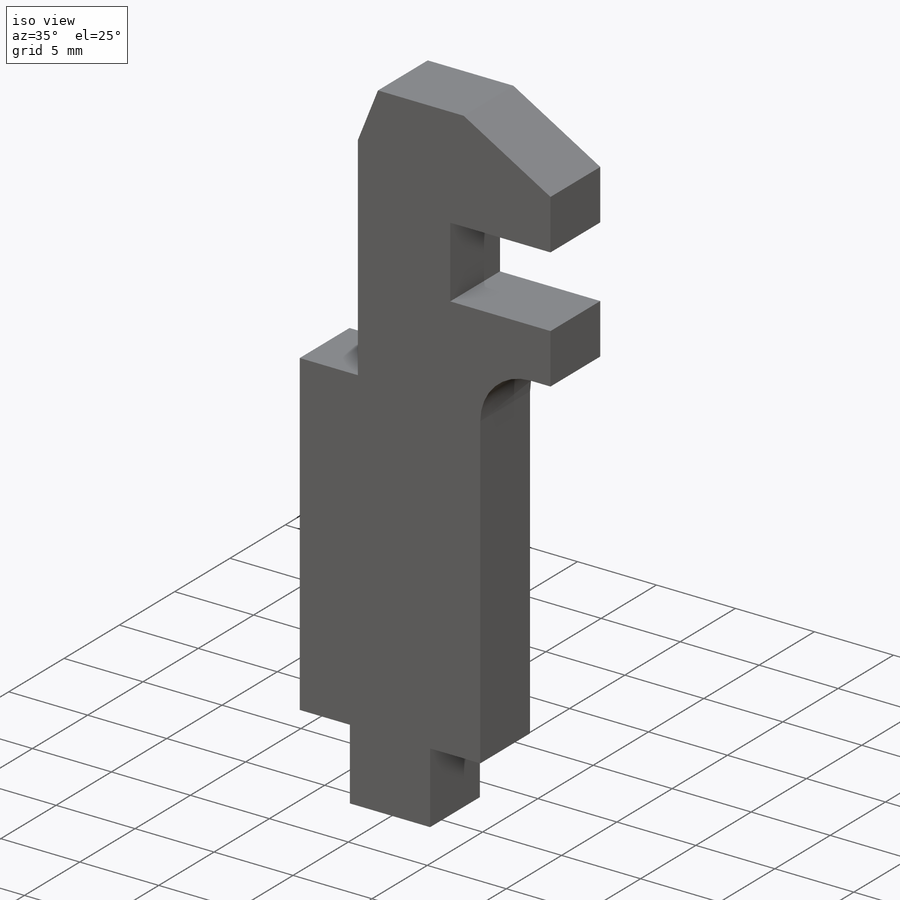
[diagram: iso view]
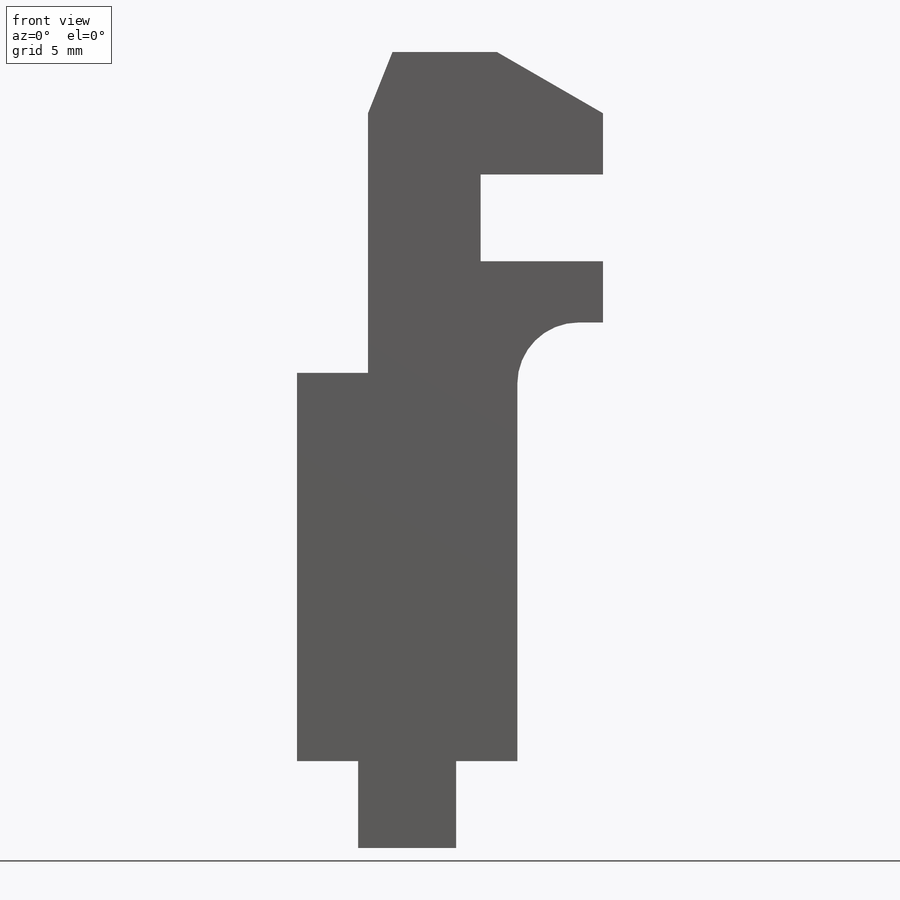
[diagram: front view]
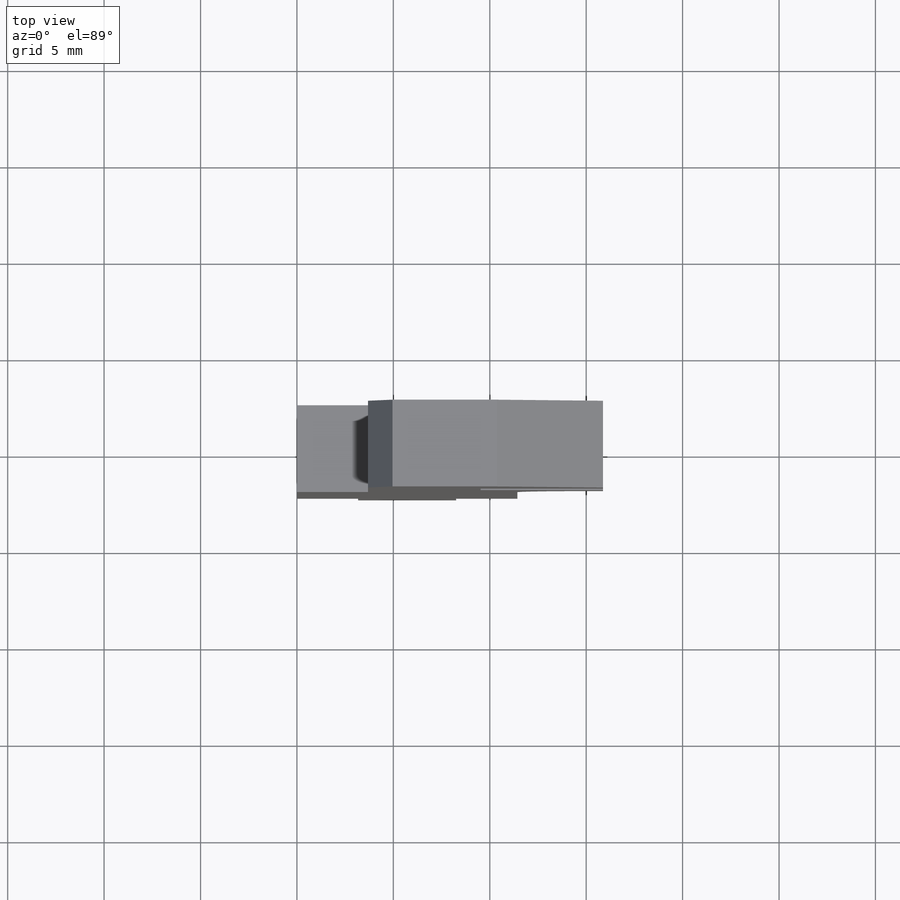
[diagram: top view]
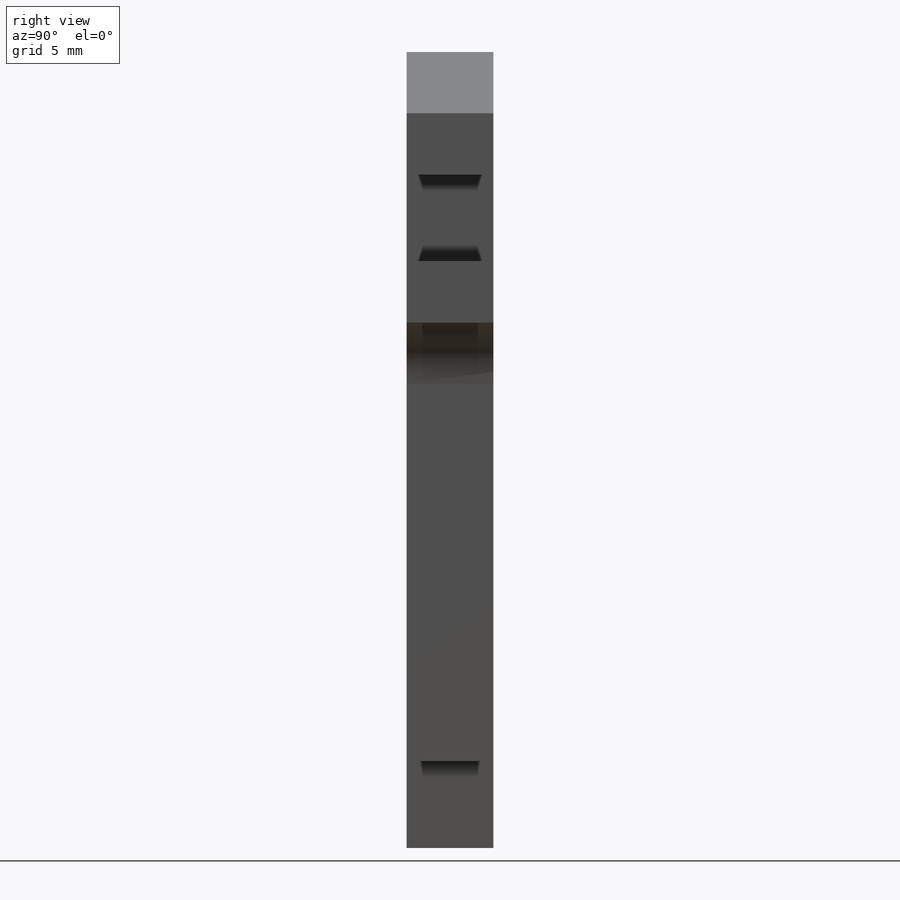
[diagram: right view]
SOLIDWORKS PART (.sldprt)
format: sldprt  version: not decoded by parser v0  size: 351,232 bytes
history: native  units: mm
features: sketch x4, extrude x3, material x1, cut_extrude x1 (+12 scaffold rows collapsed)
feature tree (21):
  scaffold x12  (default folders/planes/origin — collapsed)
  material  "ABS PC"
  sketch  "Sketch1"  dims[c1.D10=3.175mm c1.D1=4.5mm c1.D2=4.5mm c1.D3=15.875mm c1.D4=3.175mm c1.D5=3.175mm c1.D6=15.875mm c1.D7=3.683mm c1.D8=12.7mm c1.D9=~121.477825mm c1.D11=3.175mm c1.D12=3.175mm c1.D13=6.35mm c2.D8=25.4mm c2.D3=5.08mm c2.D9=38.1mm]
  extrude  "Boss-Extrude1"  Depth=4.5mm
  sketch  "Sketch2"  dims[c1.D1=3.175mm c1.D2=1.27mm c1.D3=~6.096161mm c2.D3=30.0deg]
  extrude  "Boss-Extrude2"  Depth=4.5mm
  sketch  "Sketch3"  dims[D1=0.0mm]
  cut_extrude  "Cut-Extrude1"  Depth=1.905mm
  sketch  "Sketch4"  dims[D1=0.0mm]
  extrude  "Boss-Extrude3"  Depth=1.143mm
decode coverage: 8 of 8 modeling features carry decoded parameters
note: ~ marks probable driven/reference dimensions
note: suppression state not decoded; provenance and decode notes live in map.json
